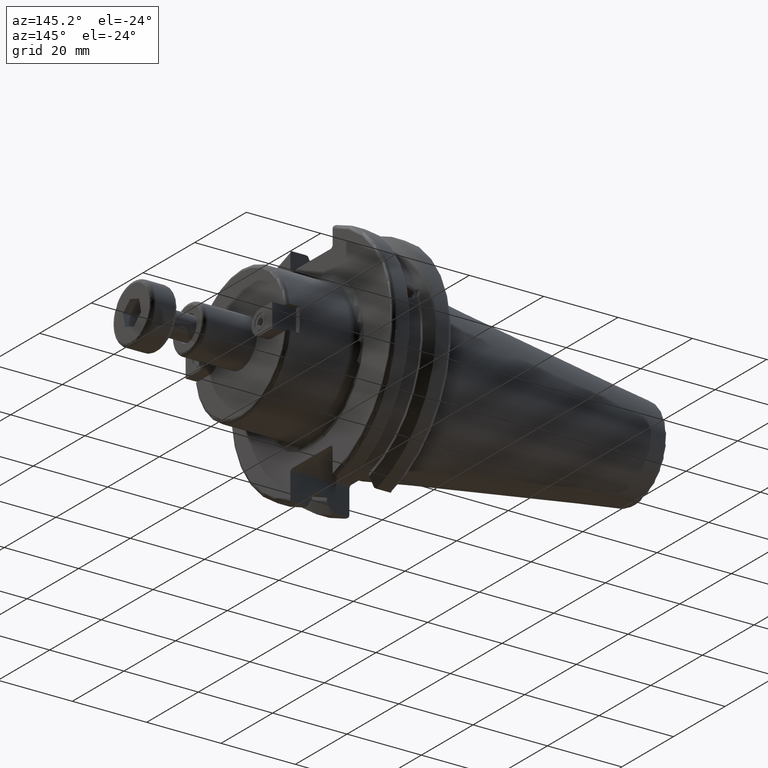
[diagram: clean part render]
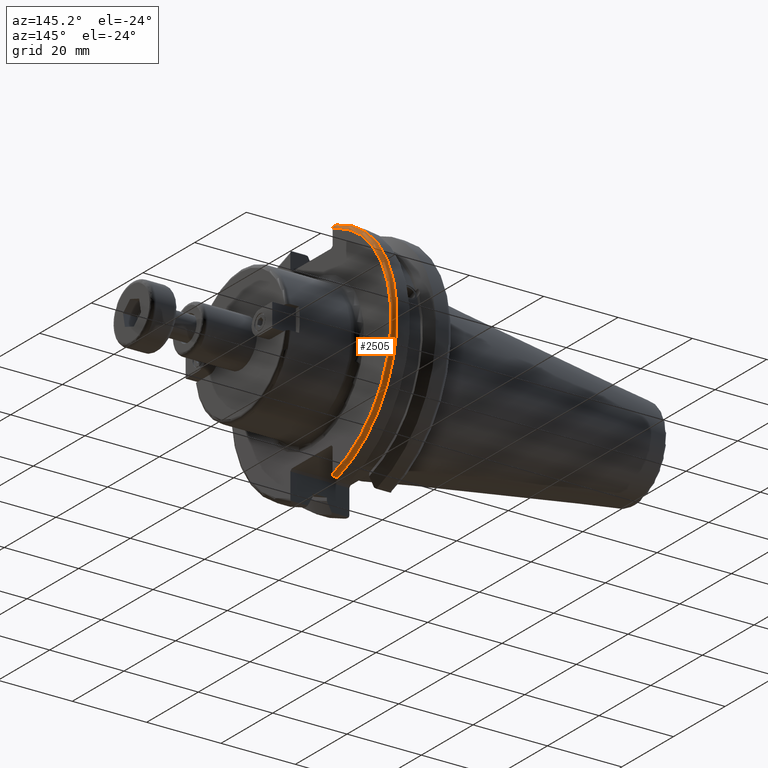
[diagram: same view with one face highlighted and labeled with its STEP entity id]
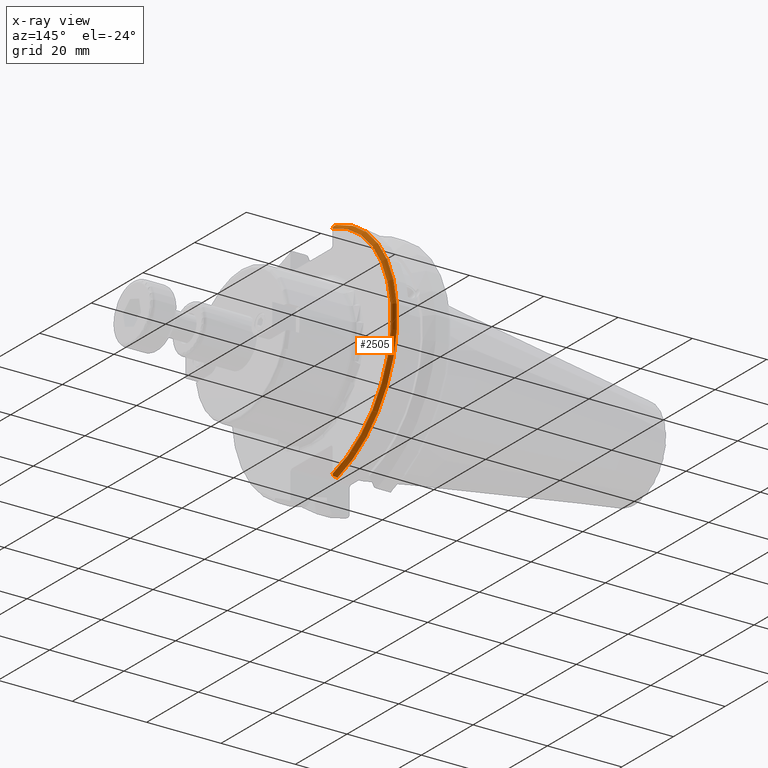
[diagram: x-ray of the same camera — body ghosted, the highlighted face saturated]
A machine part, auxiliary view. The second image highlights one B-rep face of the part: STEP entity #2505.
The next image is the same camera in x-ray: the body ghosted, the highlighted face saturated — about 0% of this face is hidden behind the body in this view.
In plain terms, the highlighted toroidal blend (fillet) surface has major radius 30.75 mm and minor (blend) radius 1 mm.
Its self-contained STEP definition (entity closure, byte-faithful):
#99=TOROIDAL_SURFACE('',#2837,30.75,1.);
#223=CIRCLE('',#2752,30.75);
#257=CIRCLE('',#2838,31.75);
#377=FACE_OUTER_BOUND('',#539,.T.);
#539=EDGE_LOOP('',(#1947,#1948,#1949,#1950,#1951,#1952));
#997=B_SPLINE_CURVE_WITH_KNOTS('',3,(#4386,#4387,#4388,#4389,#4390,#4391),
 .UNSPECIFIED.,.F.,.F.,(4,2,4),(0.0977210450333169,0.111963554372601,0.150804064902975),
 .UNSPECIFIED.);
#998=B_SPLINE_CURVE_WITH_KNOTS('',3,(#4393,#4394,#4395,#4396,#4397,#4398),
 .UNSPECIFIED.,.F.,.F.,(4,2,4),(0.452741154494497,0.491581665024871,0.505824174364157),
 .UNSPECIFIED.);
#999=B_SPLINE_CURVE_WITH_KNOTS('',3,(#4400,#4401,#4402,#4403,#4404,#4405,
#4406,#4407),.UNSPECIFIED.,.F.,.F.,(4,2,2,4),(-0.104180282751876,-0.0729784742461442,
-0.034352475387498,0.),.UNSPECIFIED.);
#1000=B_SPLINE_CURVE_WITH_KNOTS('',3,(#4410,#4411,#4412,#4413,#4414,#4415,
#4416,#4417),.UNSPECIFIED.,.F.,.F.,(4,2,2,4),(0.,0.0364423539742875,0.0778717450894454,
0.104302157163828),.UNSPECIFIED.);
#1057=VERTEX_POINT('',#4012);
#1058=VERTEX_POINT('',#4013);
#1150=VERTEX_POINT('',#4385);
#1151=VERTEX_POINT('',#4392);
#1152=VERTEX_POINT('',#4399);
#1153=VERTEX_POINT('',#4408);
#1322=EDGE_CURVE('',#1057,#1058,#223,.T.);
#1444=EDGE_CURVE('',#1150,#1057,#997,.T.);
#1445=EDGE_CURVE('',#1058,#1151,#998,.T.);
#1446=EDGE_CURVE('',#1151,#1152,#999,.T.);
#1447=EDGE_CURVE('',#1152,#1153,#257,.T.);
#1448=EDGE_CURVE('',#1153,#1150,#1000,.T.);
#1947=ORIENTED_EDGE('',*,*,#1444,.T.);
#1948=ORIENTED_EDGE('',*,*,#1322,.T.);
#1949=ORIENTED_EDGE('',*,*,#1445,.T.);
#1950=ORIENTED_EDGE('',*,*,#1446,.T.);
#1951=ORIENTED_EDGE('',*,*,#1447,.T.);
#1952=ORIENTED_EDGE('',*,*,#1448,.T.);
#2505=ADVANCED_FACE('',(#377),#99,.T.);
#2752=AXIS2_PLACEMENT_3D('',#4014,#3136,#3137);
#2837=AXIS2_PLACEMENT_3D('',#4384,#3358,#3359);
#2838=AXIS2_PLACEMENT_3D('',#4409,#3360,#3361);
#3136=DIRECTION('center_axis',(-1.,0.,0.));
#3137=DIRECTION('ref_axis',(0.,1.,-6.12323399573677E-17));
#3358=DIRECTION('center_axis',(1.,0.,0.));
#3359=DIRECTION('ref_axis',(0.,0.,-1.));
#3360=DIRECTION('center_axis',(1.,0.,0.));
#3361=DIRECTION('ref_axis',(0.,1.,-6.12323399573677E-17));
#4012=CARTESIAN_POINT('',(19.05,8.19,29.6392712461019));
#4013=CARTESIAN_POINT('',(19.05,8.19,-29.6392712461019));
#4014=CARTESIAN_POINT('Origin',(19.05,0.,0.));
#4384=CARTESIAN_POINT('Origin',(18.05,0.,0.));
#4385=CARTESIAN_POINT('',(18.9058722749097,8.19,30.1755016258903));
#4386=CARTESIAN_POINT('Ctrl Pts',(18.9058722749097,8.19,30.1755016258903));
#4387=CARTESIAN_POINT('Ctrl Pts',(18.9318163728133,8.19,30.131014531546));
#4388=CARTESIAN_POINT('Ctrl Pts',(18.9539643471756,8.19,30.0852355256475));
#4389=CARTESIAN_POINT('Ctrl Pts',(19.020485567083,8.19,29.9212724384851));
#4390=CARTESIAN_POINT('Ctrl Pts',(19.05,8.19,29.7687396145364));
#4391=CARTESIAN_POINT('Ctrl Pts',(19.05,8.19,29.6392712461019));
#4392=CARTESIAN_POINT('',(18.9058722749097,8.19,-30.1755016258903));
#4393=CARTESIAN_POINT('Ctrl Pts',(19.05,8.19,-29.6392712461019));
#4394=CARTESIAN_POINT('Ctrl Pts',(19.05,8.19,-29.7687396145364));
#4395=CARTESIAN_POINT('Ctrl Pts',(19.0204855670831,8.19,-29.9212724384851));
#4396=CARTESIAN_POINT('Ctrl Pts',(18.9539643471756,8.19,-30.0852355256475));
#4397=CARTESIAN_POINT('Ctrl Pts',(18.9318163728133,8.19,-30.131014531546));
#4398=CARTESIAN_POINT('Ctrl Pts',(18.9058722749097,8.19,-30.1755016258903));
#4399=CARTESIAN_POINT('',(18.05,8.67204822802685,-30.5427254764662));
#4400=CARTESIAN_POINT('Ctrl Pts',(18.9058722749097,8.19,-30.1755016258903));
#4401=CARTESIAN_POINT('Ctrl Pts',(18.8574463042989,8.2703682833078,-30.2367261024977));
#4402=CARTESIAN_POINT('Ctrl Pts',(18.7926702662319,8.34909446036477,-30.2966996242308));
#4403=CARTESIAN_POINT('Ctrl Pts',(18.6396724190507,8.48862804755883,-30.4029961692546));
#4404=CARTESIAN_POINT('Ctrl Pts',(18.5184414294771,8.56482138642532,-30.4610401774263));
#4405=CARTESIAN_POINT('Ctrl Pts',(18.2983170433775,8.6471881193939,-30.5237870709558));
#4406=CARTESIAN_POINT('Ctrl Pts',(18.1645082512917,8.67204822802685,-30.5427254764662));
#4407=CARTESIAN_POINT('Ctrl Pts',(18.05,8.67204822802685,-30.5427254764662));
#4408=CARTESIAN_POINT('',(18.05,8.67204822802685,30.5427254764662));
#4409=CARTESIAN_POINT('Origin',(18.05,0.,0.));
#4410=CARTESIAN_POINT('Ctrl Pts',(18.05,8.67204822802685,30.5427254764662));
#4411=CARTESIAN_POINT('Ctrl Pts',(18.1714745132476,8.67204822802685,30.5427254764662));
#4412=CARTESIAN_POINT('Ctrl Pts',(18.3129472218859,8.64410239894262,30.5214363722497));
#4413=CARTESIAN_POINT('Ctrl Pts',(18.545044361706,8.551646780666,30.4510037761381));
#4414=CARTESIAN_POINT('Ctrl Pts',(18.6711011886212,8.466075303358,30.3858155116254));
#4415=CARTESIAN_POINT('Ctrl Pts',(18.8119751533981,8.32529543089523,30.2785695477496));
#4416=CARTESIAN_POINT('Ctrl Pts',(18.8644673620074,8.25871605728283,30.2278494485451));
#4417=CARTESIAN_POINT('Ctrl Pts',(18.9058722749097,8.19,30.1755016258903));